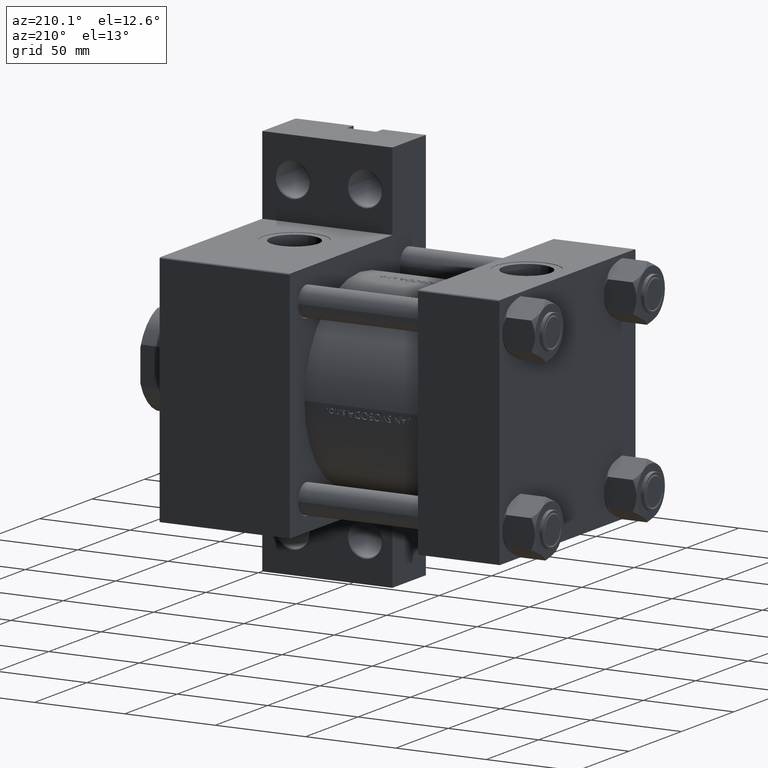
[diagram: clean part render]
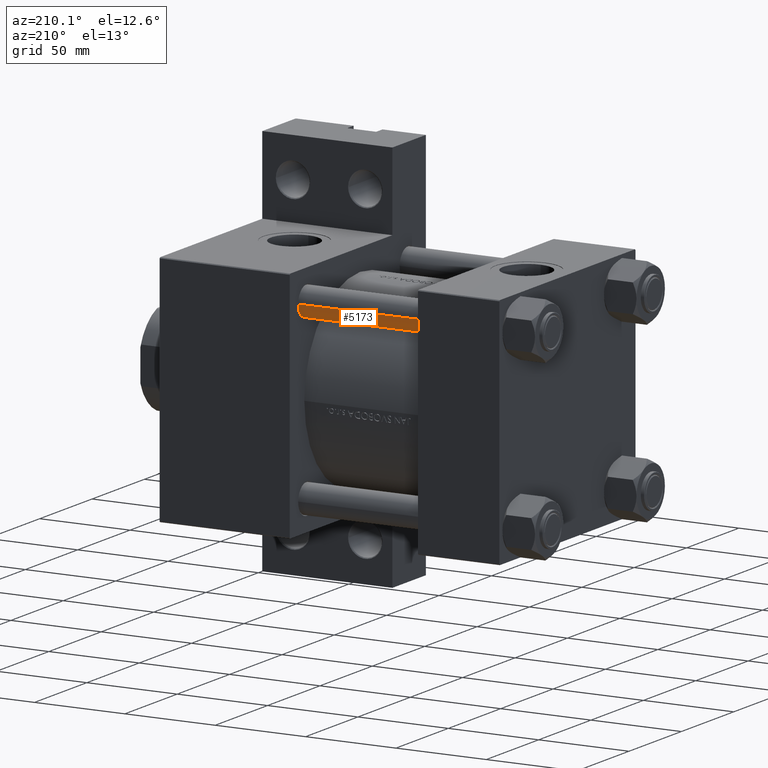
[diagram: same view with one face highlighted and labeled with its STEP entity id]
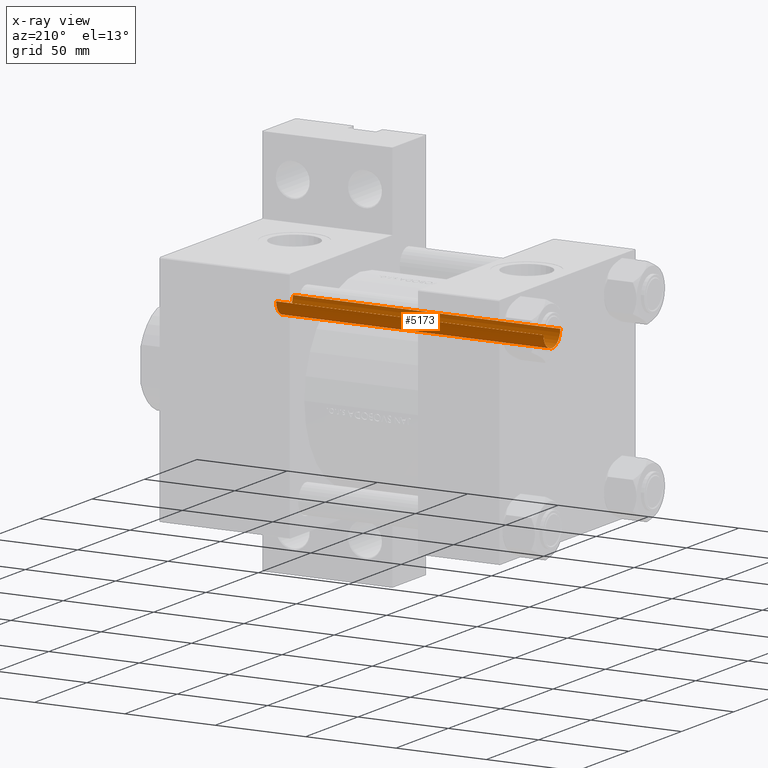
[diagram: x-ray of the same camera — body ghosted, the highlighted face saturated]
A machine part, auxiliary view. The second image highlights one B-rep face of the part: STEP entity #5173.
The next image is the same camera in x-ray: the body ghosted, the highlighted face saturated — about 0% of this face is hidden behind the body in this view.
In plain terms, the highlighted cylindrical surface (edge-blend (fillet) strip) has radius 8 mm, axis along (1, -0, 0).
Its self-contained STEP definition (entity closure, byte-faithful):
#2022 = EDGE_CURVE ( 'NONE', #36513, #34538, #23150, .T. ) ;
#2051 = EDGE_CURVE ( 'NONE', #37635, #19467, #39733, .T. ) ;
#3111 = CARTESIAN_POINT ( 'NONE',  ( 0.000000000000000000, 0.000000000000000000, 149.0000000000000000 ) ) ;
#5173 = ADVANCED_FACE ( 'NONE', ( #36550 ), #36796, .T. ) ;
#7170 = CIRCLE ( 'NONE', #11841, 8.000000000000000000 ) ;
#8698 = DIRECTION ( 'NONE',  ( 0.000000000000000000, 0.000000000000000000, -1.000000000000000000 ) ) ;
#10403 = ORIENTED_EDGE ( 'NONE', *, *, #43218, .T. ) ;
#10678 = DIRECTION ( 'NONE',  ( -1.000000000000000000, 0.000000000000000000, 0.000000000000000000 ) ) ;
#11521 = ORIENTED_EDGE ( 'NONE', *, *, #2022, .T. ) ;
#11841 = AXIS2_PLACEMENT_3D ( 'NONE', #19193, #8698, #11883 ) ;
#11883 = DIRECTION ( 'NONE',  ( 1.000000000000000000, 0.000000000000000000, 0.000000000000000000 ) ) ;
#15302 = CIRCLE ( 'NONE', #24680, 8.000000000000000000 ) ;
#16541 = DIRECTION ( 'NONE',  ( -0.000000000000000000, -0.000000000000000000, -1.000000000000000000 ) ) ;
#19193 = CARTESIAN_POINT ( 'NONE',  ( 0.000000000000000000, 0.000000000000000000, 148.5000000000000000 ) ) ;
#19467 = VERTEX_POINT ( 'NONE', #25430 ) ;
#21736 = DIRECTION ( 'NONE',  ( -0.000000000000000000, -0.000000000000000000, 1.000000000000000000 ) ) ;
#21817 = VECTOR ( 'NONE', #41702, 1000.000000000000000 ) ;
#23150 = LINE ( 'NONE', #45356, #21817 ) ;
#24115 = CARTESIAN_POINT ( 'NONE',  ( -8.000000000000000000, 0.000000000000000000, 149.0000000000000000 ) ) ;
#24680 = AXIS2_PLACEMENT_3D ( 'NONE', #47586, #21736, #32956 ) ;
#25430 = CARTESIAN_POINT ( 'NONE',  ( -8.000000000000000000, 0.000000000000000000, 0.5000000000000281997 ) ) ;
#30040 = EDGE_CURVE ( 'NONE', #34538, #19467, #15302, .T. ) ;
#32843 = CARTESIAN_POINT ( 'NONE',  ( 8.000000000000000000, 9.797174393178825657E-16, 0.5000000000000281997 ) ) ;
#32956 = DIRECTION ( 'NONE',  ( 1.000000000000000000, 0.000000000000000000, 0.000000000000000000 ) ) ;
#34385 = AXIS2_PLACEMENT_3D ( 'NONE', #3111, #44102, #10678 ) ;
#34538 = VERTEX_POINT ( 'NONE', #32843 ) ;
#36513 = VERTEX_POINT ( 'NONE', #45028 ) ;
#36550 = FACE_OUTER_BOUND ( 'NONE', #47927, .T. ) ;
#36796 = CYLINDRICAL_SURFACE ( 'NONE', #34385, 8.000000000000000000 ) ;
#37635 = VERTEX_POINT ( 'NONE', #46448 ) ;
#39733 = LINE ( 'NONE', #24115, #40520 ) ;
#40520 = VECTOR ( 'NONE', #16541, 1000.000000000000000 ) ;
#41702 = DIRECTION ( 'NONE',  ( -0.000000000000000000, -0.000000000000000000, -1.000000000000000000 ) ) ;
#43218 = EDGE_CURVE ( 'NONE', #37635, #36513, #7170, .T. ) ;
#44102 = DIRECTION ( 'NONE',  ( -0.000000000000000000, -0.000000000000000000, -1.000000000000000000 ) ) ;
#44779 = ORIENTED_EDGE ( 'NONE', *, *, #30040, .T. ) ;
#45028 = CARTESIAN_POINT ( 'NONE',  ( 8.000000000000000000, 9.797174393178825657E-16, 148.5000000000000000 ) ) ;
#45356 = CARTESIAN_POINT ( 'NONE',  ( 8.000000000000000000, 9.797174393178825657E-16, 149.0000000000000000 ) ) ;
#46448 = CARTESIAN_POINT ( 'NONE',  ( -8.000000000000000000, 0.000000000000000000, 148.5000000000000000 ) ) ;
#46464 = ORIENTED_EDGE ( 'NONE', *, *, #2051, .F. ) ;
#47586 = CARTESIAN_POINT ( 'NONE',  ( 0.000000000000000000, 0.000000000000000000, 0.5000000000000281997 ) ) ;
#47927 = EDGE_LOOP ( 'NONE', ( #10403, #11521, #44779, #46464 ) ) ;